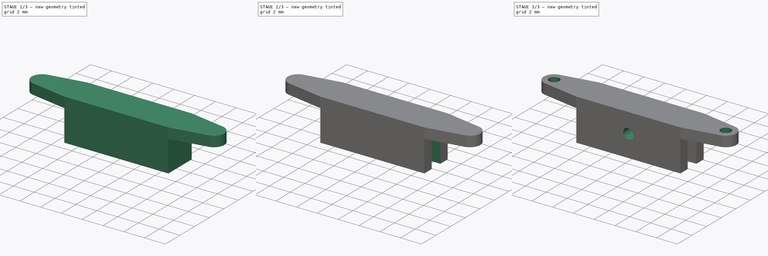
[diagram: build sequence overview — one tinted view per stage of 3, left to right]
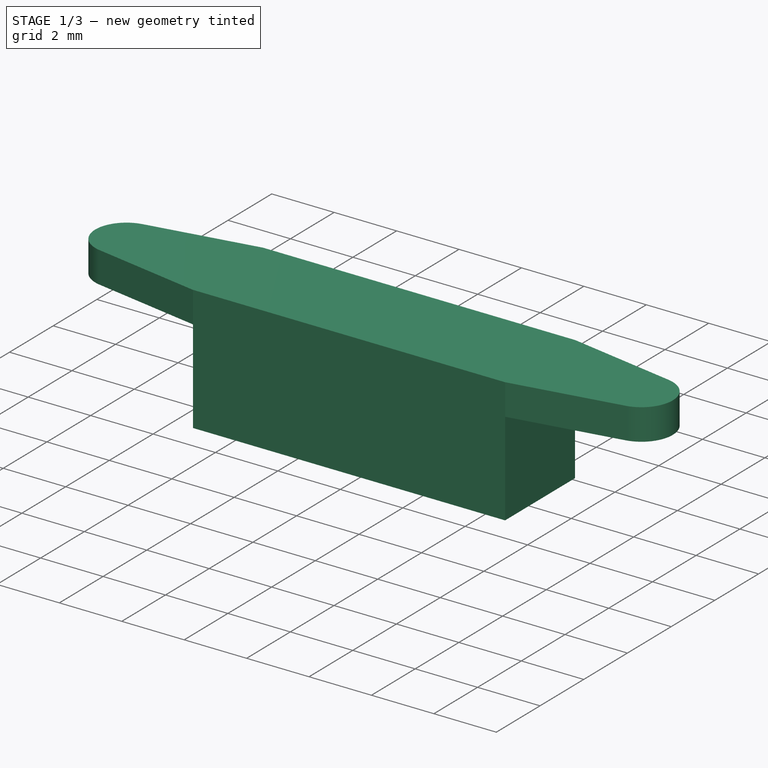
[diagram: stage 1 of 3 — iso view after this stage's code; geometry added in this stage tinted green]
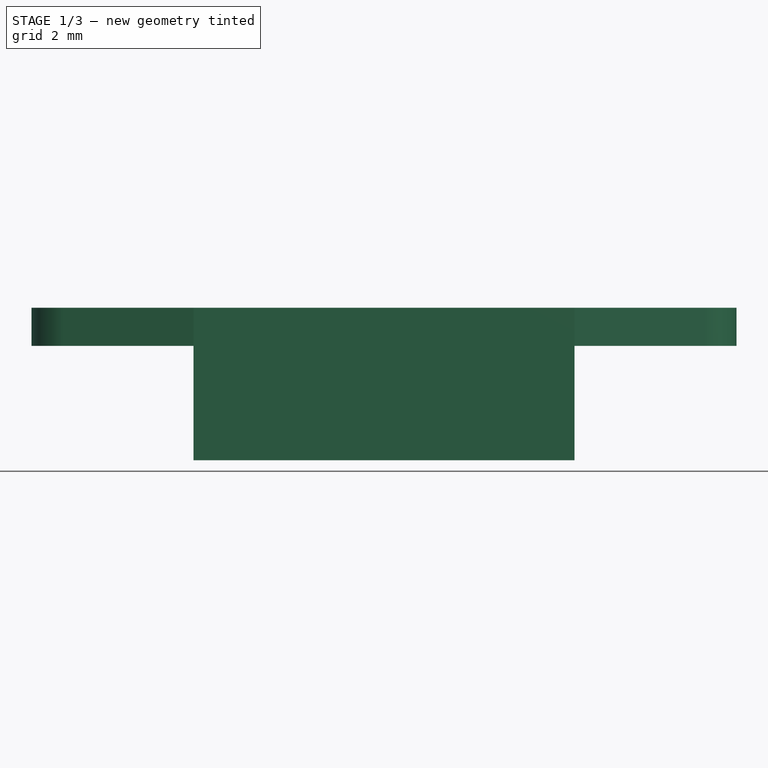
[diagram: stage 1 of 3 — front view after this stage's code; geometry added in this stage tinted green]
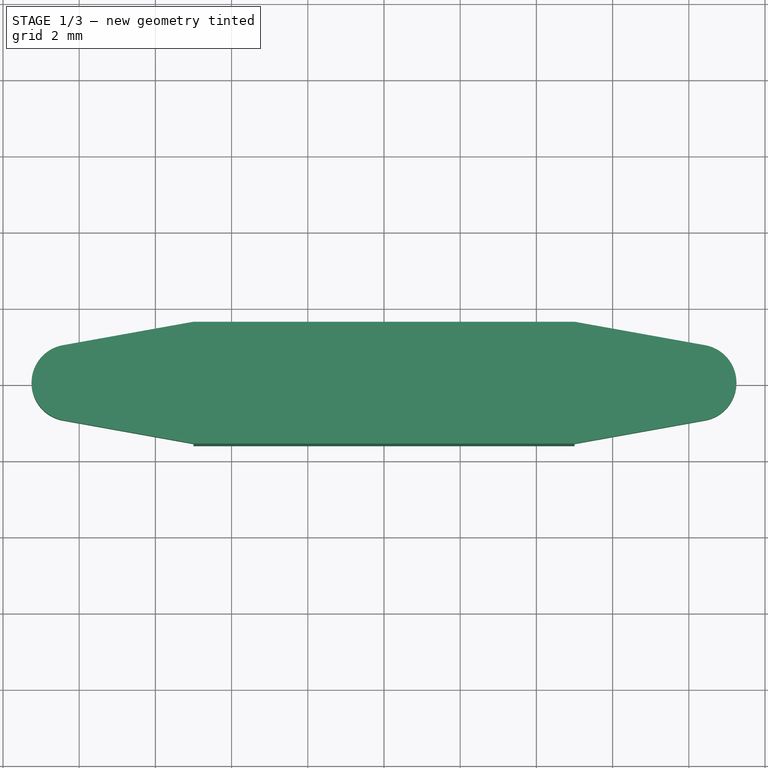
[diagram: stage 1 of 3 — top view after this stage's code; geometry added in this stage tinted green]
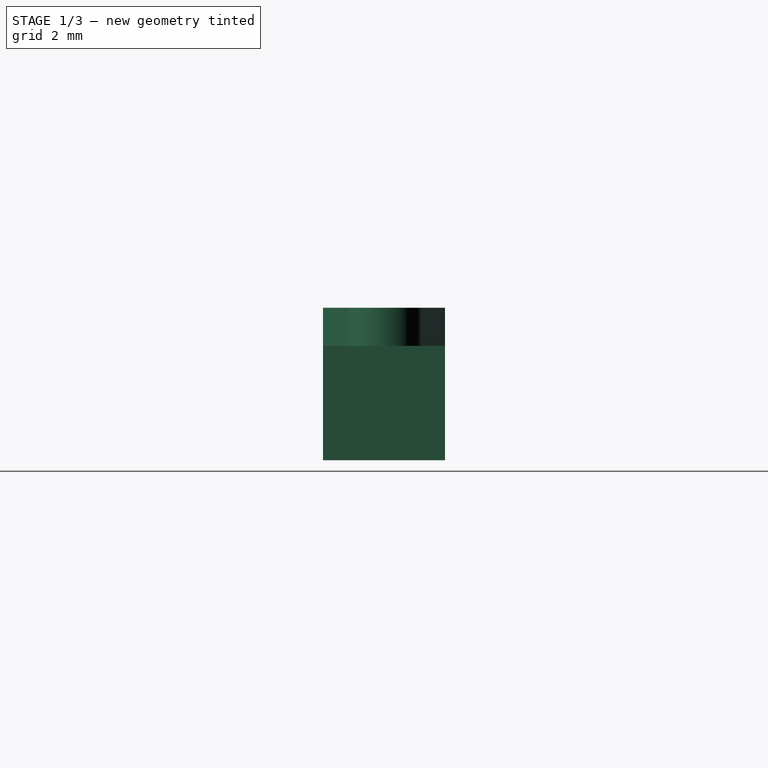
[diagram: stage 1 of 3 — right view after this stage's code; geometry added in this stage tinted green]
FCSTD DOCUMENT  (FreeCAD 0.16R6264 (Git))
Label: Dir_D
License: All rights reserved
LicenseURL: http://en.wikipedia.org/wiki/All_rights_reserved
objects: Sketcher::SketchObject×5, PartDesign::Pocket×3, PartDesign::Pad×2
note: 15 computed .brp shape members not serialized (recipe doc carries the construction recipe); baked Part::Feature solids carry a one-line shape summary decoded from their .brp

FEATURE [Sketcher::SketchObject] Sketch
  sketch-geometry (8):
    g0: LineSegment StartX=-5 StartY=1.6 StartZ=0 EndX=5 EndY=1.6 EndZ=0
    g1: LineSegment StartX=5 StartY=-1.6 StartZ=0 EndX=-5 EndY=-1.6 EndZ=0
    g2: LineSegment StartX=-5 StartY=1.6 StartZ=0 EndX=-8.42686 EndY=0.984237 EndZ=0
    g3: LineSegment StartX=-8.42686 StartY=-0.984237 StartZ=0 EndX=-5 EndY=-1.6 EndZ=0
    g4: LineSegment StartX=5 StartY=1.6 StartZ=0 EndX=8.42686 EndY=0.984237 EndZ=0
    g5: LineSegment StartX=5 StartY=-1.6 StartZ=0 EndX=8.42686 EndY=-0.984237 EndZ=0
    g6: ArcOfCircle CenterX=8.25 CenterY=0 CenterZ=0 NormalX=0 NormalY=0 NormalZ=1 Radius=1 StartAngle=4.89018 EndAngle=7.67619
    g7: ArcOfCircle CenterX=-8.25 CenterY=0 CenterZ=0 NormalX=0 NormalY=0 NormalZ=1 Radius=1 StartAngle=1.74859 EndAngle=4.5346
  constraints (23):
    c: Horizontal(g0)
    c: Horizontal(g1)
    c: Coincident(g3,g1)
    c: Coincident(g4,g0)
    c: Coincident(g0,g2)
    c: PointOnObject(g7,g-1)
    c: PointOnObject(g6,g-1)
    c: Tangent(g4,g6) = 1.5708
    c: Tangent(g5,g6) = -1.5708
    c: Tangent(g2,g7) = -1.5708
    c: Tangent(g3,g7) = -1.5708
    c: DistanceY(g0,g1) = -3.2
    c: Coincident(g1,g5)
    c: Radius(g6) = 1
    c: Equal(g6,g7)
    c: DistanceY(g0) = 1.6
    c: DistanceX(g6,g7) = -16.5
    c: Equal(g0,g1)
    c: DistanceX(g0) = 10
    c: DistanceX(g6) = 8.25
    c: Equal(g4,g5)
    c: Equal(g5,g3)
    c: Equal(g3,g2)
FEATURE [PartDesign::Pad] Pad
  Length = 1
  Length2 = 100
  Sketch = -> Sketch
  Type = 0
FEATURE [Sketcher::SketchObject] Sketch001
  Placement = pos=(0,0,0) rot=(1,0,0;3.14159rad)
  Support = -> Pad [Face9]
  sketch-geometry (4):
    g0: LineSegment StartX=-5 StartY=1.6 StartZ=0 EndX=5 EndY=1.6 EndZ=0
    g1: LineSegment StartX=5 StartY=1.6 StartZ=0 EndX=5 EndY=-1.6 EndZ=0
    g2: LineSegment StartX=5 StartY=-1.6 StartZ=0 EndX=-5 EndY=-1.6 EndZ=0
    g3: LineSegment StartX=-5 StartY=-1.6 StartZ=0 EndX=-5 EndY=1.6 EndZ=0
  constraints (12):
    c: Coincident(g0,g1)
    c: Coincident(g1,g2)
    c: Coincident(g2,g3)
    c: Coincident(g3,g0)
    c: Horizontal(g0)
    c: Horizontal(g2)
    c: Vertical(g1)
    c: Vertical(g3)
    c: DistanceX(g0) = 10
    c: DistanceY(g1) = -3.2
    c: DistanceX(g0) = 5
    c: DistanceY(g0) = 1.6
FEATURE [PartDesign::Pad] Pad001
  Length = 3
  Length2 = 100
  Sketch = -> Sketch001
  Type = 0
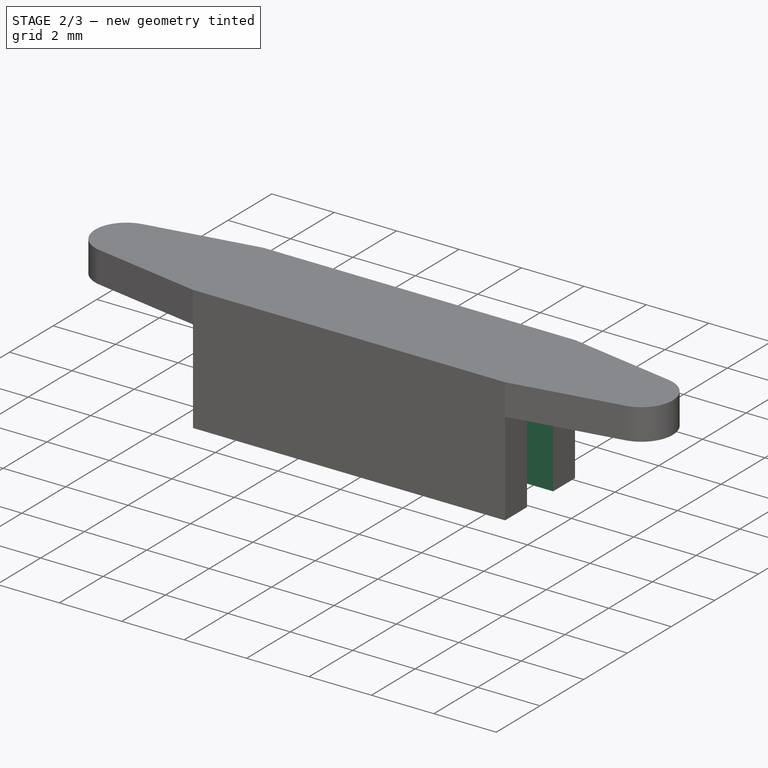
[diagram: stage 2 of 3 — iso view after this stage's code; geometry added in this stage tinted green]
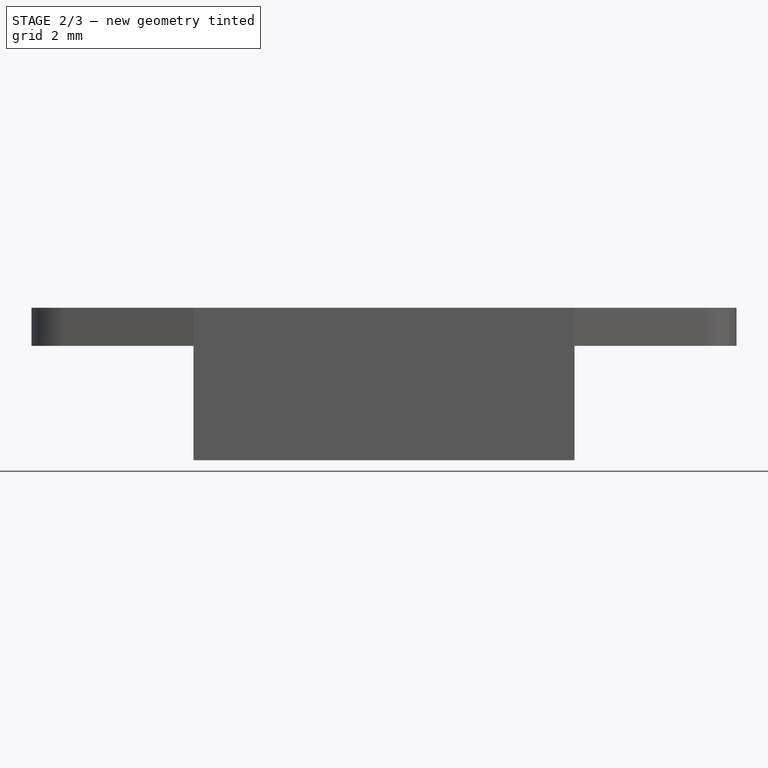
[diagram: stage 2 of 3 — front view after this stage's code; geometry added in this stage tinted green]
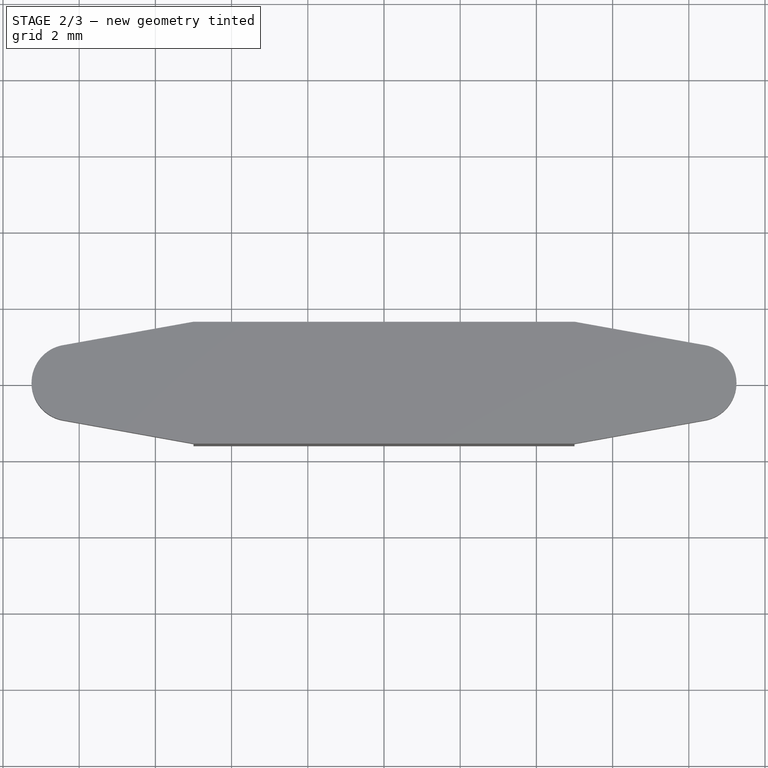
[diagram: stage 2 of 3 — top view after this stage's code; geometry added in this stage tinted green]
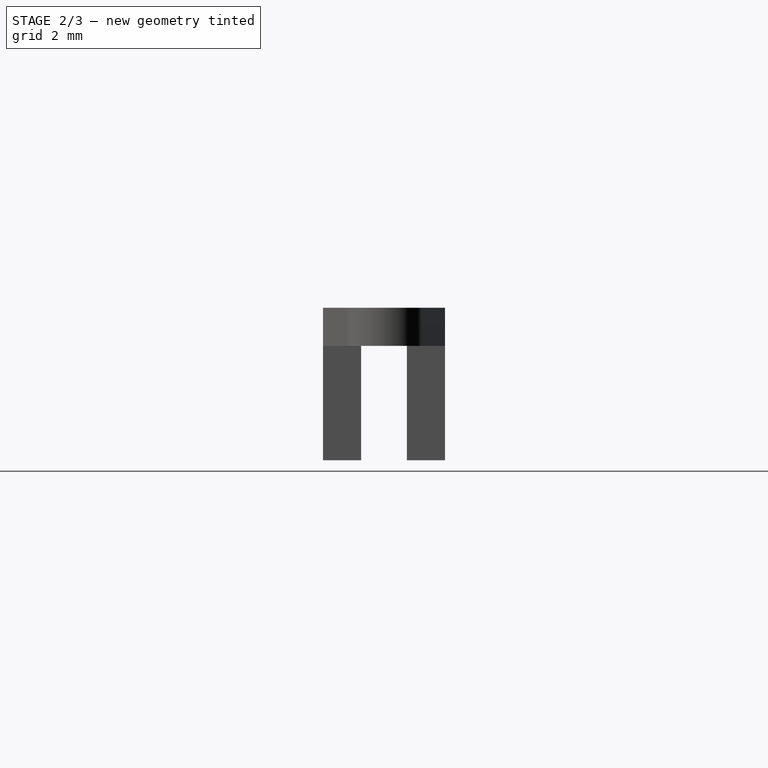
[diagram: stage 2 of 3 — right view after this stage's code; geometry added in this stage tinted green]
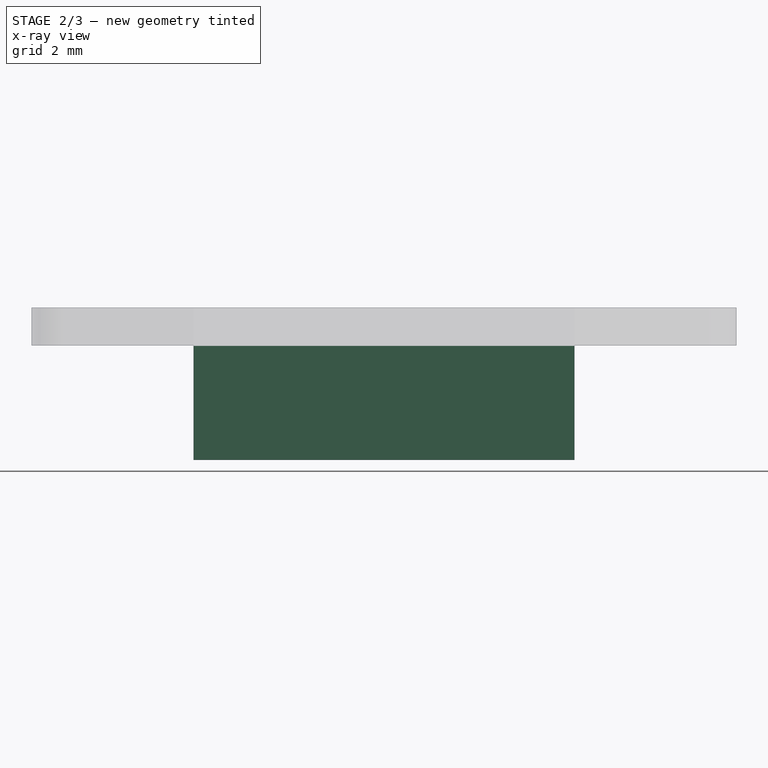
[diagram: stage 2 of 3 — x-ray composite at the front view; earlier geometry ghosted, this stage's added geometry solid]
FEATURE [Sketcher::SketchObject] Sketch002
  Placement = pos=(0,0,-3) rot=(1,0,0;3.14159rad)
  Support = -> Pad001 [Face16]
  sketch-geometry (4):
    g0: LineSegment StartX=-5 StartY=0.6 StartZ=0 EndX=5 EndY=0.6 EndZ=0
    g1: LineSegment StartX=5 StartY=0.6 StartZ=0 EndX=5 EndY=-0.6 EndZ=0
    g2: LineSegment StartX=5 StartY=-0.6 StartZ=0 EndX=-5 EndY=-0.6 EndZ=0
    g3: LineSegment StartX=-5 StartY=-0.6 StartZ=0 EndX=-5 EndY=0.6 EndZ=0
  constraints (12):
    c: Coincident(g0,g1)
    c: Coincident(g1,g2)
    c: Coincident(g2,g3)
    c: Coincident(g3,g0)
    c: Horizontal(g0)
    c: Horizontal(g2)
    c: Vertical(g1)
    c: Vertical(g3)
    c: DistanceX(g0) = 10
    c: DistanceX(g0) = 5
    c: DistanceY(g1) = -1.2
    c: DistanceY(g0) = 0.6
FEATURE [PartDesign::Pocket] Pocket
  Length = 3
  Sketch = -> Sketch002
  Type = 0
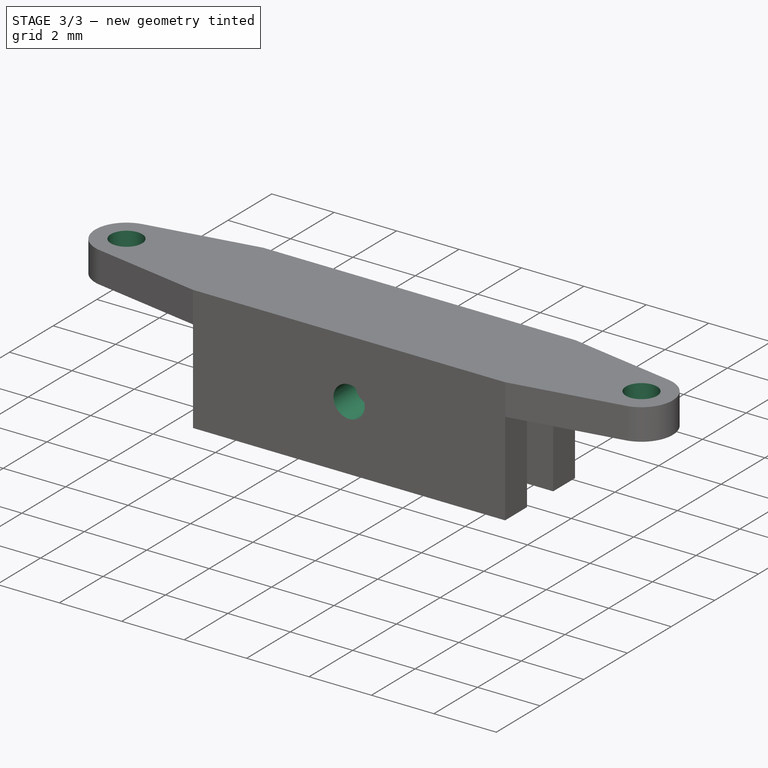
[diagram: stage 3 of 3 — iso view after this stage's code; geometry added in this stage tinted green]
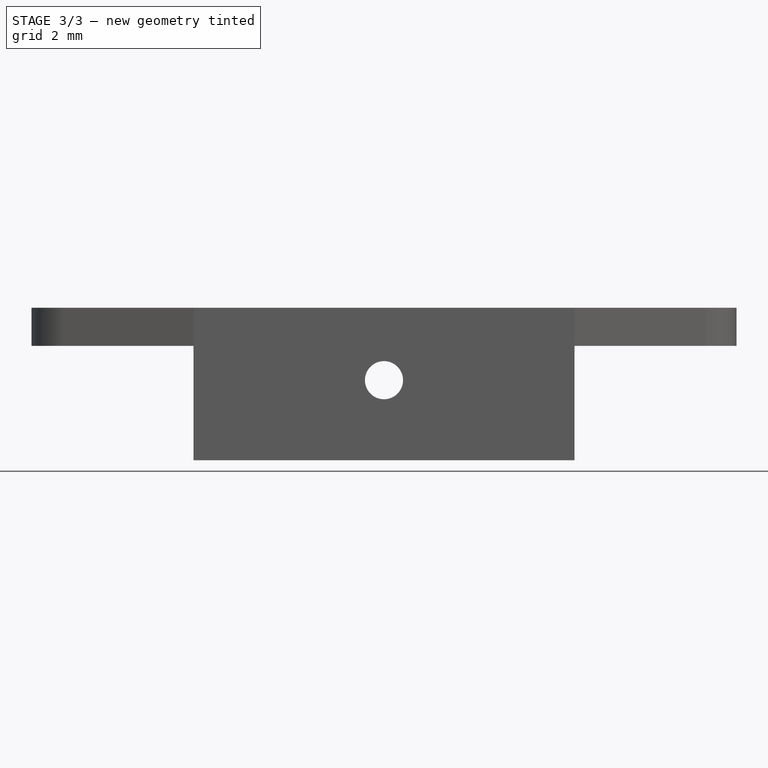
[diagram: stage 3 of 3 — front view after this stage's code; geometry added in this stage tinted green]
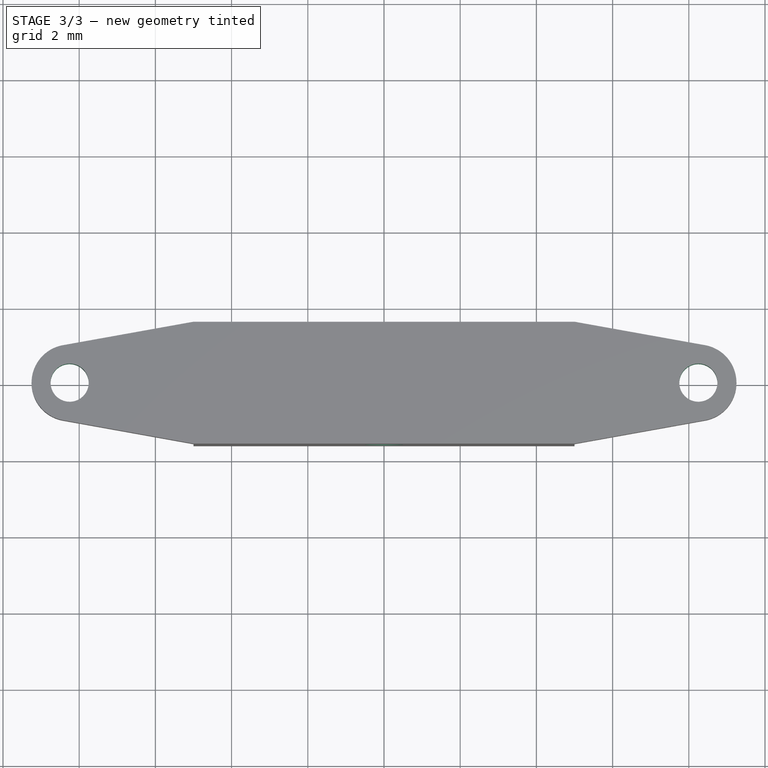
[diagram: stage 3 of 3 — top view after this stage's code; geometry added in this stage tinted green]
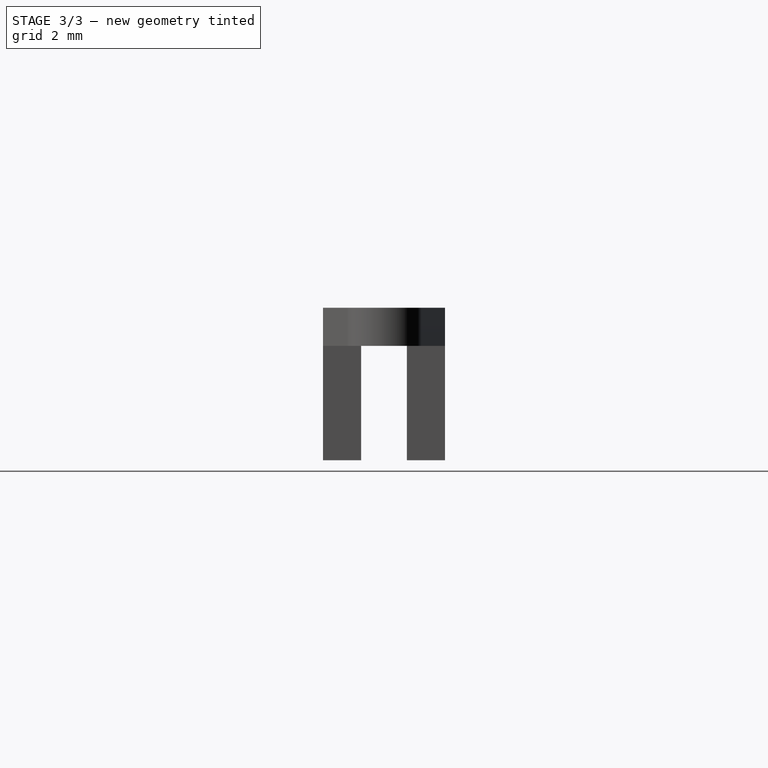
[diagram: stage 3 of 3 — right view after this stage's code; geometry added in this stage tinted green]
FEATURE [Sketcher::SketchObject] Sketch003
  Placement = pos=(0,-1.6,0) rot=(1,0,0;1.5708rad)
  Support = -> Pocket [Face13]
  sketch-geometry (1):
    g0: Circle CenterX=0 CenterY=-0.9 CenterZ=0 NormalX=0 NormalY=0 NormalZ=1 Radius=0.5
  constraints (3):
    c: PointOnObject(g0,g-2)
    c: DistanceY(g0) = -0.9
    c: Radius(g0) = 0.5
FEATURE [PartDesign::Pocket] Pocket001
  Length = 4
  Sketch = -> Sketch003
  Type = 0
FEATURE [Sketcher::SketchObject] Sketch004
  Placement = pos=(0,0,1) rot=(0,0,1;0rad)
  Support = -> Pocket001 [Face1]
  sketch-geometry (2):
    g0: Circle CenterX=-8.25 CenterY=0 CenterZ=0 NormalX=0 NormalY=0 NormalZ=1 Radius=0.5
    g1: Circle CenterX=8.25 CenterY=0 CenterZ=0 NormalX=0 NormalY=0 NormalZ=1 Radius=0.5
  constraints (6):
    c: PointOnObject(g0,g-1)
    c: PointOnObject(g1,g-1)
    c: DistanceX(g1,g0) = -16.5
    c: DistanceX(g1) = 8.25
    c: Radius(g0) = 0.5
    c: Equal(g0,g1)
FEATURE [PartDesign::Pocket] Pocket002
  Length = 1
  Sketch = -> Sketch004
  Type = 0
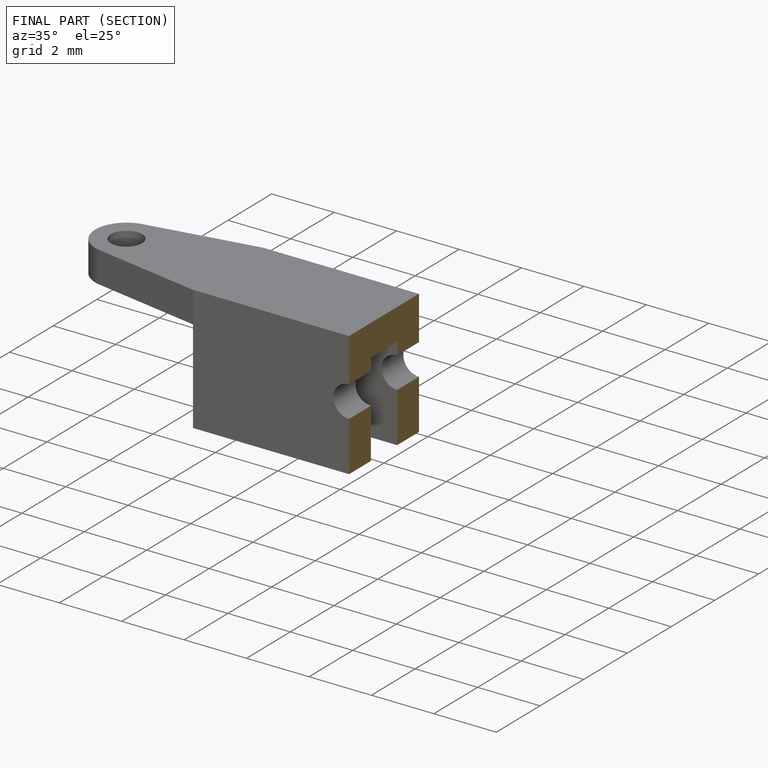
[diagram: finished part — half-section view (interior)]
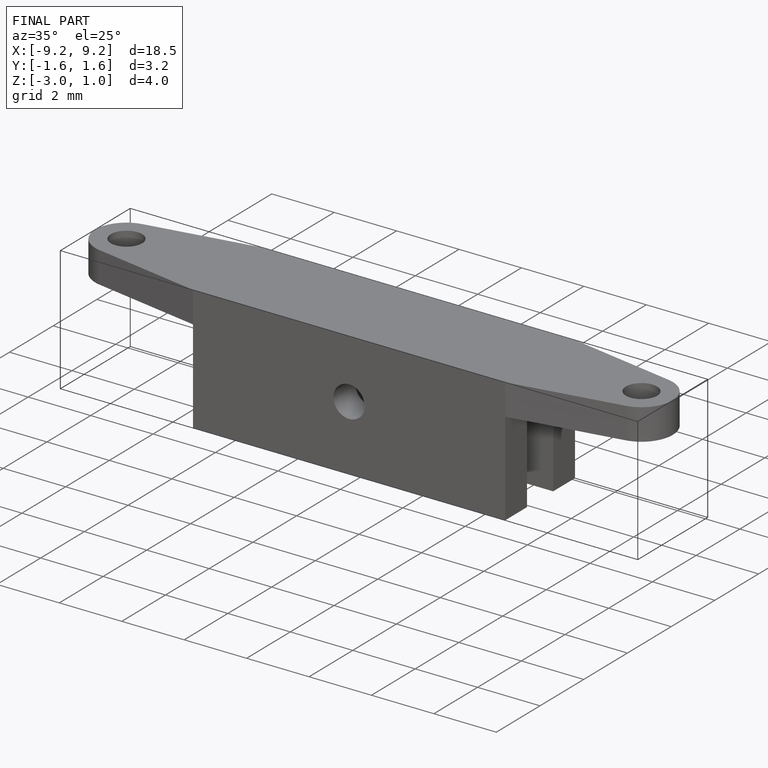
[diagram: finished part — iso view with bounding-box wireframe]
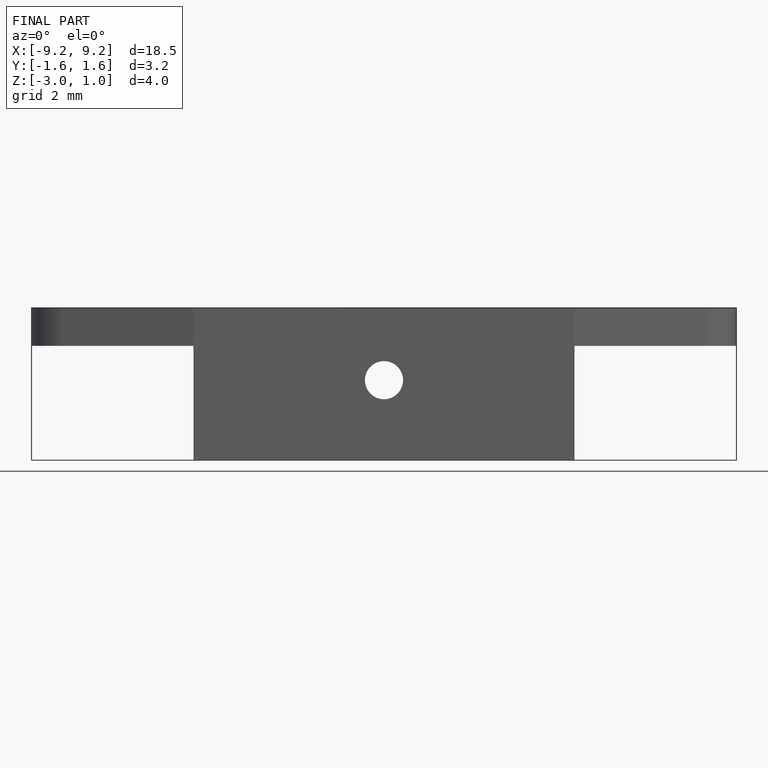
[diagram: finished part — front view with bounding-box wireframe]
